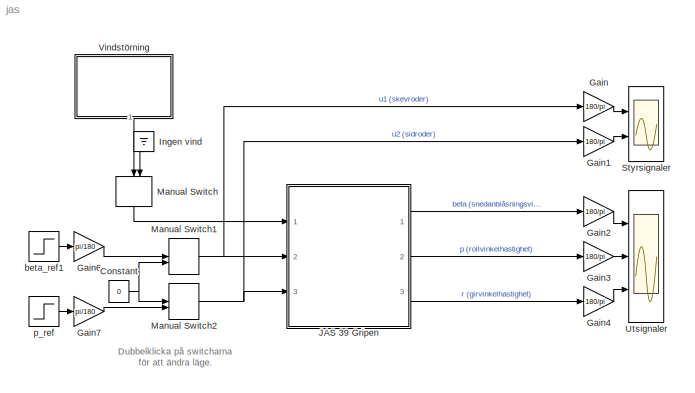
MODEL jas
KIND model
BLOCK [Ground]  Ingen vind
  NameLocation = right
  SID = 1
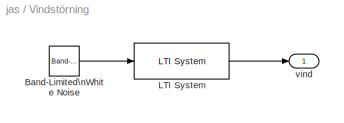
BLOCK [SubSystem]  Vindstörning
  NameLocation = right
  Ports = [0, 1]
  RequestExecContextInheritance = off
  SID = 2
BLOCK [Reference]  Vindstörning/Band-Limited\nWhite Noise  REF=simulink/Sources/Band-Limited\nWhite Noise
  Cov = [1 1]
  Ports = [0, 1]
  RTWMemSecDataConstants = Inherit from model
  RTWMemSecDataInternal = Inherit from model
  RTWMemSecDataParameters = Inherit from model
  RTWMemSecFuncExecute = Inherit from model
  RTWMemSecFuncInitTerm = Inherit from model
  SID = 3
  SourceBlock = simulink/Sources/Band-Limited\nWhite Noise
  SourceProductBaseCode = SL
  SourceType = Band-Limited White Noise.
  Ts = 0.01
  VectorParams1D = on
  seed = [23341 23342]
BLOCK [Reference]  Vindstörning/LTI System  REF=cstblocks/LTI System
  IC = 0
  Ports = [1, 1]
  RTWMemSecDataConstants = Inherit from model
  RTWMemSecDataInternal = Inherit from model
  RTWMemSecDataParameters = Inherit from model
  RTWMemSecFuncExecute = Inherit from model
  RTWMemSecFuncInitTerm = Inherit from model
  SID = 4
  SourceBlock = cstblocks/LTI System
  SourceProductBaseCode = CT
  SourceType = LTI Block
  sys = H
BLOCK [Outport]  Vindstörning/vind
  SID = 5
BLOCK [Constant] Constant
  SID = 6
  Value = 0
BLOCK [Gain] Gain
  Gain = 180/pi
  SID = 7
BLOCK [Gain] Gain1
  Gain = 180/pi
  SID = 8
BLOCK [Gain] Gain2
  Gain = 180/pi
  SID = 9
BLOCK [Gain] Gain3
  Gain = 180/pi
  SID = 10
BLOCK [Gain] Gain4
  Gain = 180/pi
  SID = 11
BLOCK [Gain] Gain6
  Gain = pi/180
  SID = 12
BLOCK [Gain] Gain7
  Gain = pi/180
  SID = 13
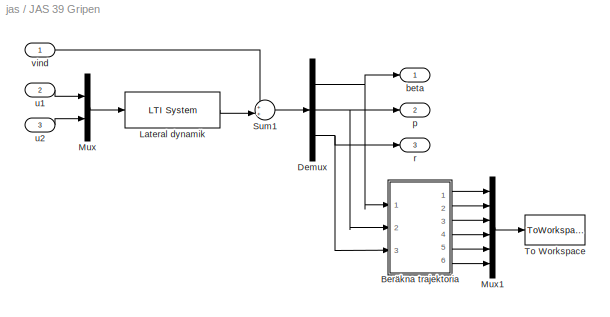
BLOCK [SubSystem] JAS 39 Gripen
  Ports = [3, 3]
  RequestExecContextInheritance = off
  SID = 14
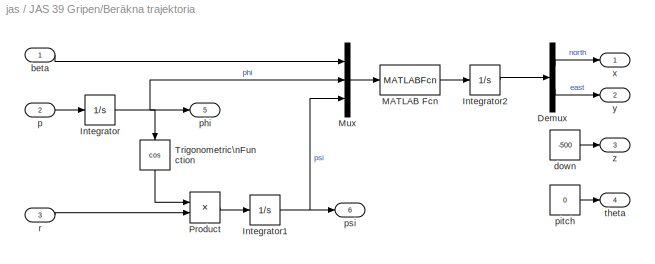
BLOCK [SubSystem] JAS 39 Gripen/Beräkna trajektoria
  Ports = [3, 6]
  RequestExecContextInheritance = off
  SID = 18
BLOCK [Demux] JAS 39 Gripen/Beräkna trajektoria/Demux
  Outputs = 2
  Ports = [1, 2]
  SID = 22
BLOCK [Integrator] JAS 39 Gripen/Beräkna trajektoria/Integrator
  Ports = [1, 1]
  SID = 23
BLOCK [Integrator] JAS 39 Gripen/Beräkna trajektoria/Integrator1
  Ports = [1, 1]
  SID = 24
BLOCK [Integrator] JAS 39 Gripen/Beräkna trajektoria/Integrator2
  Ports = [1, 1]
  SID = 25
BLOCK [MATLABFcn] JAS 39 Gripen/Beräkna trajektoria/MATLAB Fcn
  MATLABFcn = pos(u)
  Ports = [1, 1]
  SID = 26
BLOCK [Mux] JAS 39 Gripen/Beräkna trajektoria/Mux
  DisplayOption = bar
  Inputs = 3
  Ports = [3, 1]
  SID = 27
BLOCK [Product] JAS 39 Gripen/Beräkna trajektoria/Product
  Ports = [2, 1]
  RndMeth = Zero
  SID = 28
BLOCK [Trigonometry] JAS 39 Gripen/Beräkna trajektoria/Trigonometric\nFunction
  NameLocation = left
  Operator = cos
  Ports = [1, 1]
  SID = 29
BLOCK [Inport] JAS 39 Gripen/Beräkna trajektoria/beta
  SID = 19
BLOCK [Constant] JAS 39 Gripen/Beräkna trajektoria/down
  SID = 30
  Value = -500
BLOCK [Inport] JAS 39 Gripen/Beräkna trajektoria/p
  Port = 2
  SID = 20
BLOCK [Outport] JAS 39 Gripen/Beräkna trajektoria/phi
  Port = 5
  SID = 36
BLOCK [Constant] JAS 39 Gripen/Beräkna trajektoria/pitch
  SID = 31
  Value = 0
BLOCK [Outport] JAS 39 Gripen/Beräkna trajektoria/psi
  Port = 6
  SID = 37
BLOCK [Inport] JAS 39 Gripen/Beräkna trajektoria/r
  Port = 3
  SID = 21
BLOCK [Outport] JAS 39 Gripen/Beräkna trajektoria/theta
  Port = 4
  SID = 35
BLOCK [Outport] JAS 39 Gripen/Beräkna trajektoria/x
  SID = 32
BLOCK [Outport] JAS 39 Gripen/Beräkna trajektoria/y
  Port = 2
  SID = 33
BLOCK [Outport] JAS 39 Gripen/Beräkna trajektoria/z
  Port = 3
  SID = 34
BLOCK [Demux] JAS 39 Gripen/Demux
  Outputs = 3
  Ports = [1, 3]
  SID = 38
BLOCK [Reference] JAS 39 Gripen/Lateral dynamik  REF=cstblocks/LTI System
  IC = 0
  Ports = [1, 1]
  RTWMemSecDataConstants = Inherit from model
  RTWMemSecDataInternal = Inherit from model
  RTWMemSecDataParameters = Inherit from model
  RTWMemSecFuncExecute = Inherit from model
  RTWMemSecFuncInitTerm = Inherit from model
  SID = 39
  SourceBlock = cstblocks/LTI System
  SourceProductBaseCode = CT
  SourceType = LTI Block
  sys = G
BLOCK [Mux] JAS 39 Gripen/Mux
  DisplayOption = bar
  Inputs = 2
  Ports = [2, 1]
  SID = 40
BLOCK [Mux] JAS 39 Gripen/Mux1
  DisplayOption = bar
  Inputs = 6
  Ports = [6, 1]
  SID = 41
BLOCK [Sum] JAS 39 Gripen/Sum1
  Inputs = ++|
  Ports = [2, 1]
  SID = 42
BLOCK [ToWorkspace] JAS 39 Gripen/To Workspace
  MaxDataPoints = inf
  Ports = [1]
  SID = 43
  SampleTime = .1
  SaveFormat = Structure With Time
  VariableName = trajout
BLOCK [Outport] JAS 39 Gripen/beta
  SID = 44
BLOCK [Outport] JAS 39 Gripen/p
  Port = 2
  SID = 45
BLOCK [Outport] JAS 39 Gripen/r
  Port = 3
  SID = 46
BLOCK [Inport] JAS 39 Gripen/u1
  Port = 2
  SID = 16
BLOCK [Inport] JAS 39 Gripen/u2
  Port = 3
  SID = 17
BLOCK [Inport] JAS 39 Gripen/vind
  SID = 15
BLOCK [ManualSwitch] Manual Switch
  NameLocation = left
  SID = 47
BLOCK [ManualSwitch] Manual Switch1
  CurrentSetting = 0
  SID = 48
BLOCK [ManualSwitch] Manual Switch2
  CurrentSetting = 0
  SID = 49
BLOCK [Scope] Styrsignaler
  Floating = off
  NumInputPorts = 2
  Ports = [2]
  SID = 50
  ScopeSpecificationString = Simulink.scopes.TimeScopeBlockCfg('CurrentConfiguration', extmgr.ConfigurationSet(extmgr.Configuration('Core','General UI',true),extmgr.Configuration('Core','Source UI',true),extmgr.Configuration('Sources','WiredSimulink',true,'DataLoggingVariableName','ScopeData1','DataLoggingSaveFormat','StructureWithTime','DataLoggingLimitDataPoints',true,'DataLoggingDecimation','1','DataLoggingDecimateData',tr...<+2669ch>
BLOCK [Scope] Utsignaler
  Floating = off
  NumInputPorts = 3
  Ports = [3]
  SID = 51
  ScopeSpecificationString = Simulink.scopes.TimeScopeBlockCfg('CurrentConfiguration', extmgr.ConfigurationSet(extmgr.Configuration('Core','General UI',true),extmgr.Configuration('Core','Source UI',true),extmgr.Configuration('Sources','WiredSimulink',true,'DataLoggingSaveFormat','StructureWithTime','DataLoggingLimitDataPoints',true,'DataLoggingDecimation','1','DataLoggingDecimateData',true),extmgr.Configuration('Visuals','Tim...<+3419ch>
BLOCK [Step] beta_ref1
  After = 0
  Before = 2
  NameLocation = top
  SID = 52
  SampleTime = 0
  Time = 5
BLOCK [Step] p_ref
  After = 0
  Before = 2
  SID = 53
  SampleTime = 0
  Time = 5
ANNOTATION (root): Dubbelklicka på switcharna\nför att ändra läge.
LINE  Ingen vind:1 -> Manual Switch:2
LINE  Vindstörning/Band-Limited\nWhite Noise:1 ->  Vindstörning/LTI System:1
LINE  Vindstörning/LTI System:1 ->  Vindstörning/vind:1
LINE  Vindstörning:1 -> Manual Switch:1
NET Constant:1 -> Manual Switch1:2, Manual Switch2:1
LINE Gain1:1 -> Styrsignaler:2
LINE Gain2:1 -> Utsignaler:1
LINE Gain3:1 -> Utsignaler:2
LINE Gain4:1 -> Utsignaler:3
LINE Gain6:1 -> Manual Switch1:1
LINE Gain7:1 -> Manual Switch2:2
LINE Gain:1 -> Styrsignaler:1
LINE JAS 39 Gripen/Beräkna trajektoria/Demux:1 -> JAS 39 Gripen/Beräkna trajektoria/x:1
LINE JAS 39 Gripen/Beräkna trajektoria/Demux:2 -> JAS 39 Gripen/Beräkna trajektoria/y:1
NET JAS 39 Gripen/Beräkna trajektoria/Integrator1:1 -> JAS 39 Gripen/Beräkna trajektoria/Mux:3, JAS 39 Gripen/Beräkna trajektoria/psi:1
LINE JAS 39 Gripen/Beräkna trajektoria/Integrator2:1 -> JAS 39 Gripen/Beräkna trajektoria/Demux:1
NET JAS 39 Gripen/Beräkna trajektoria/Integrator:1 -> JAS 39 Gripen/Beräkna trajektoria/Mux:2, JAS 39 Gripen/Beräkna trajektoria/Trigonometric\nFunction:1, JAS 39 Gripen/Beräkna trajektoria/phi:1
LINE JAS 39 Gripen/Beräkna trajektoria/MATLAB Fcn:1 -> JAS 39 Gripen/Beräkna trajektoria/Integrator2:1
LINE JAS 39 Gripen/Beräkna trajektoria/Mux:1 -> JAS 39 Gripen/Beräkna trajektoria/MATLAB Fcn:1
LINE JAS 39 Gripen/Beräkna trajektoria/Product:1 -> JAS 39 Gripen/Beräkna trajektoria/Integrator1:1
LINE JAS 39 Gripen/Beräkna trajektoria/Trigonometric\nFunction:1 -> JAS 39 Gripen/Beräkna trajektoria/Product:1
LINE JAS 39 Gripen/Beräkna trajektoria/beta:1 -> JAS 39 Gripen/Beräkna trajektoria/Mux:1
LINE JAS 39 Gripen/Beräkna trajektoria/down:1 -> JAS 39 Gripen/Beräkna trajektoria/z:1
LINE JAS 39 Gripen/Beräkna trajektoria/p:1 -> JAS 39 Gripen/Beräkna trajektoria/Integrator:1
LINE JAS 39 Gripen/Beräkna trajektoria/pitch:1 -> JAS 39 Gripen/Beräkna trajektoria/theta:1
LINE JAS 39 Gripen/Beräkna trajektoria/r:1 -> JAS 39 Gripen/Beräkna trajektoria/Product:2
LINE JAS 39 Gripen/Beräkna trajektoria:1 -> JAS 39 Gripen/Mux1:1
LINE JAS 39 Gripen/Beräkna trajektoria:2 -> JAS 39 Gripen/Mux1:2
LINE JAS 39 Gripen/Beräkna trajektoria:3 -> JAS 39 Gripen/Mux1:3
LINE JAS 39 Gripen/Beräkna trajektoria:4 -> JAS 39 Gripen/Mux1:4
LINE JAS 39 Gripen/Beräkna trajektoria:5 -> JAS 39 Gripen/Mux1:5
LINE JAS 39 Gripen/Beräkna trajektoria:6 -> JAS 39 Gripen/Mux1:6
NET JAS 39 Gripen/Demux:1 -> JAS 39 Gripen/Beräkna trajektoria:1, JAS 39 Gripen/beta:1
NET JAS 39 Gripen/Demux:2 -> JAS 39 Gripen/Beräkna trajektoria:2, JAS 39 Gripen/p:1
NET JAS 39 Gripen/Demux:3 -> JAS 39 Gripen/Beräkna trajektoria:3, JAS 39 Gripen/r:1
LINE JAS 39 Gripen/Lateral dynamik:1 -> JAS 39 Gripen/Sum1:2
LINE JAS 39 Gripen/Mux1:1 -> JAS 39 Gripen/To Workspace:1
LINE JAS 39 Gripen/Mux:1 -> JAS 39 Gripen/Lateral dynamik:1
LINE JAS 39 Gripen/Sum1:1 -> JAS 39 Gripen/Demux:1
LINE JAS 39 Gripen/u1:1 -> JAS 39 Gripen/Mux:1
LINE JAS 39 Gripen/u2:1 -> JAS 39 Gripen/Mux:2
LINE JAS 39 Gripen/vind:1 -> JAS 39 Gripen/Sum1:1
LINE JAS 39 Gripen:1 -> Gain2:1
LINE JAS 39 Gripen:2 -> Gain3:1
LINE JAS 39 Gripen:3 -> Gain4:1
NET Manual Switch1:1 -> Gain:1, JAS 39 Gripen:2
NET Manual Switch2:1 -> Gain1:1, JAS 39 Gripen:3
LINE Manual Switch:1 -> JAS 39 Gripen:1
LINE beta_ref1:1 -> Gain6:1
LINE p_ref:1 -> Gain7:1
note: NET lines group one-source signal fan-out (src -> all destinations, sorted); 1:1 wires keep LINE
